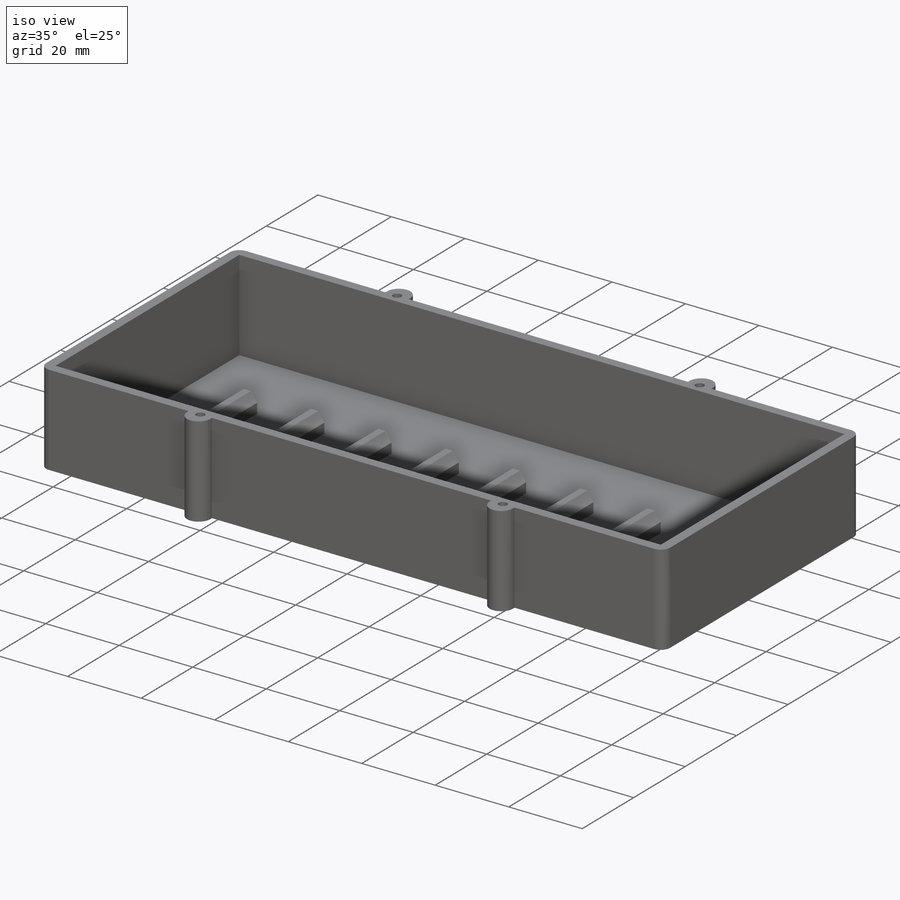
[diagram: iso view]
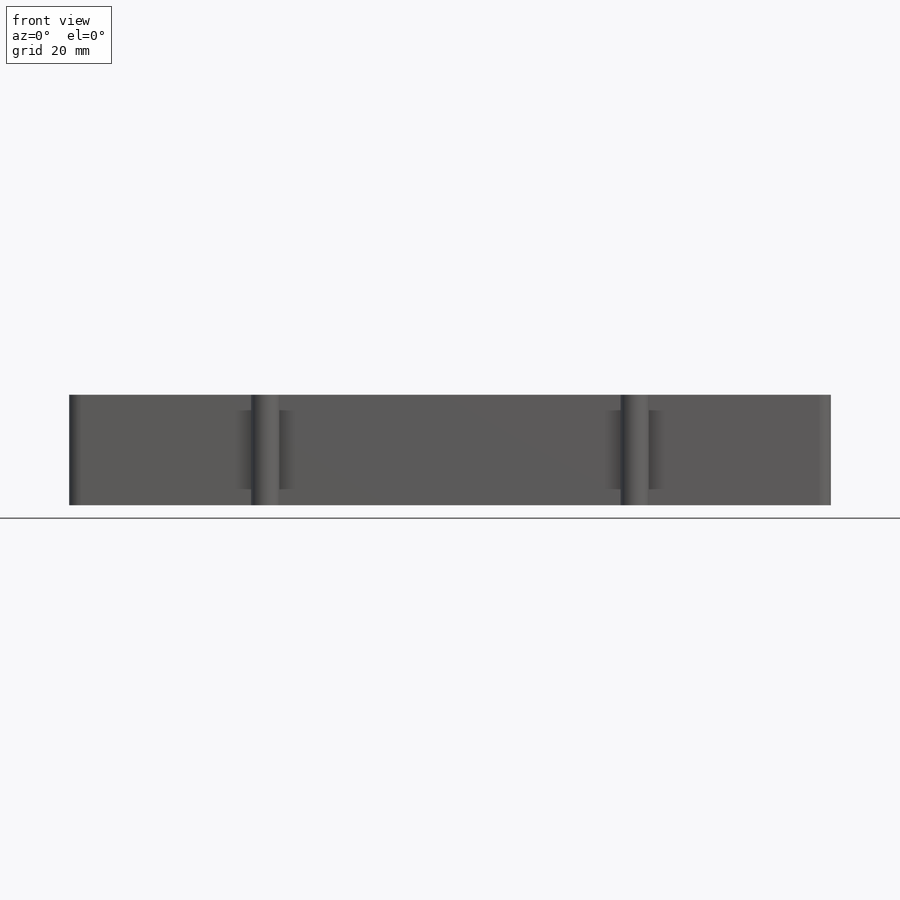
[diagram: front view]
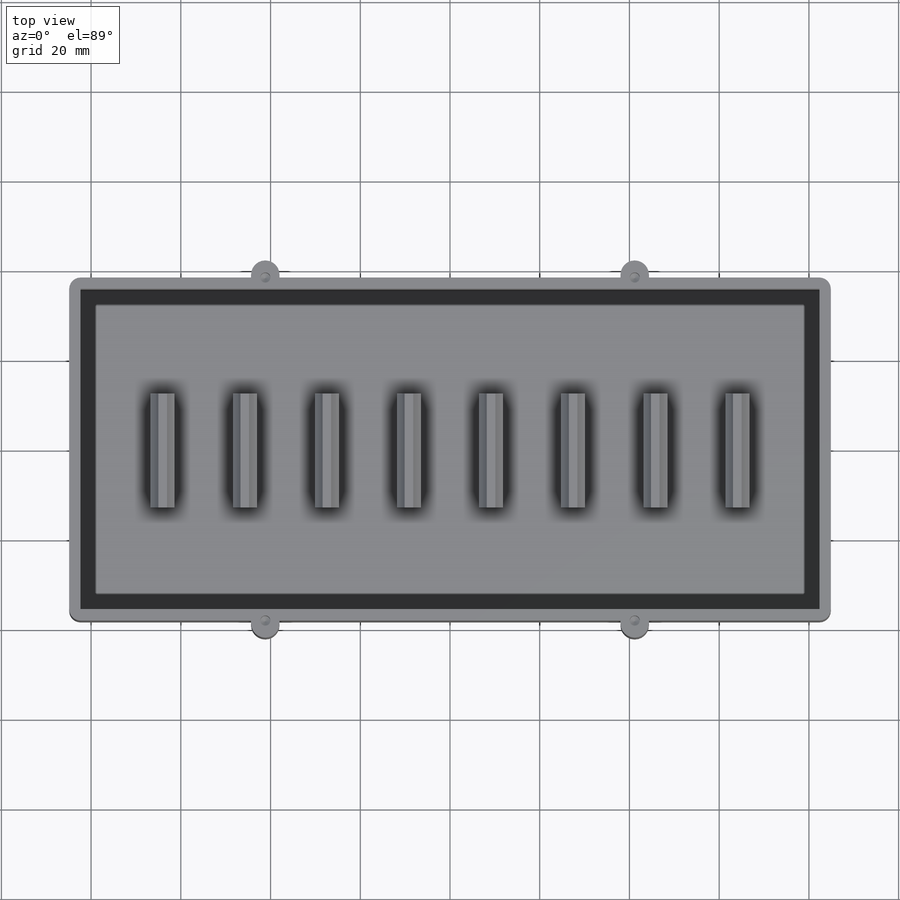
[diagram: top view]
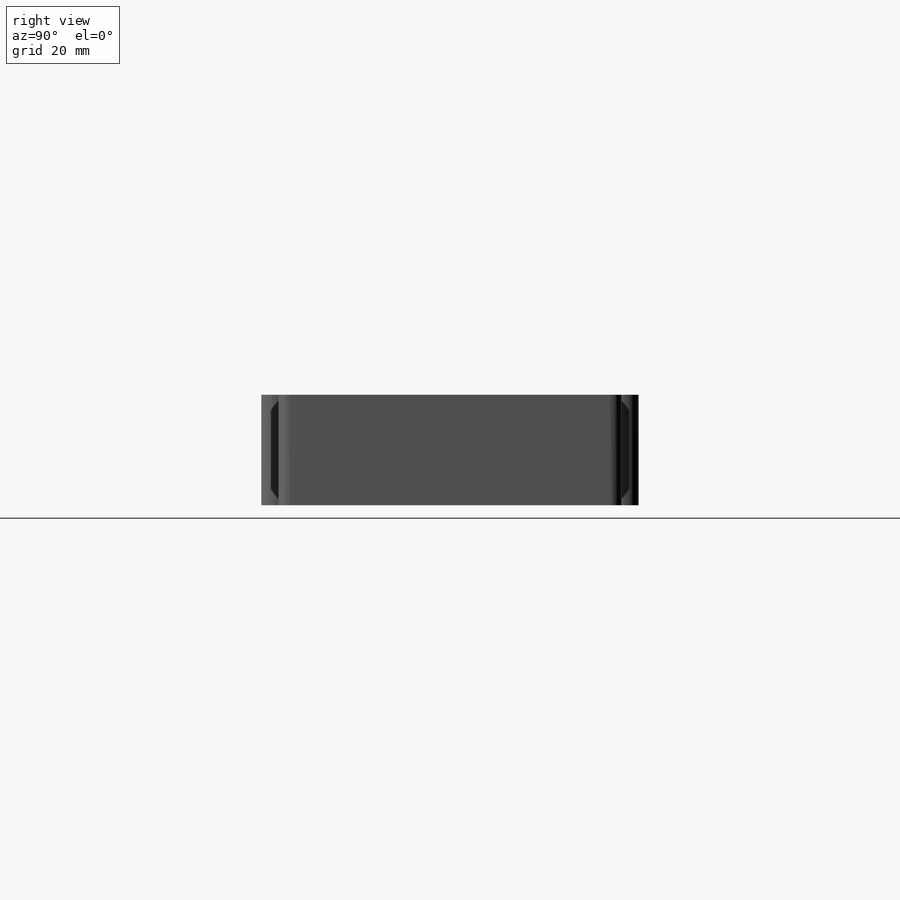
[diagram: right view]
SOLIDWORKS PART (.sldprt)
format: sldprt  version: not decoded by parser v0  size: 410,624 bytes
history: native  units: mm
features: sketch x8, fillet x5, thread x4, extrude x3, mirror x2, material x1, plane x1, pattern_linear x1, delete_body x1, hole x1 (+11 scaffold rows collapsed)
feature tree (38):
  scaffold x11  (default folders/planes/origin — collapsed)
  material  "ABS"
  sketch  "Sketch1"  dims[D1=164.7mm D2=71.4mm D3=2.54mm]
  extrude  "Boss-Extrude1"  [1 undecoded]
  sketch  "Sketch1<2>"  dims[D1=24.65mm]
  sketch  "Sketch5"
  plane  "Plane1"
  sketch  "Sketch4"  dims[D1=9.15mm D2=18.3mm D3=5.08mm]
  extrude  "Boss-Extrude2"  Depth=25.4mm
  pattern_linear  "LPattern2"  Count1=8 Count2=1 Spacing1=18.3mm Spacing2=50mm
  sketch  "Sketch6"  dims[D1=6.35mm D2=3.81mm]
  delete_body  "Body-Delete1"
  extrude  "Boss-Extrude3"  [1 undecoded]
  mirror  "Mirror1"
  mirror  "Mirror2"
  sketch  "Sketch10"
  hole  "#4-40 Tapped Hole1"  Diameter=2.2606mm Depth=7.62mm
  sketch  "Sketch8"
  sketch  "Sketch7"  dims[hole-wizard template sketch: 50 standard entries collapsed; hole parameters above]
  thread  "Hole Thread1"  Diameter=5.588mm  [1 undecoded]
  thread  "Hole Thread2"  Diameter=5.588mm  [1 undecoded]
  thread  "Hole Thread3"  Diameter=5.588mm  [1 undecoded]
  thread  "Hole Thread4"  Diameter=5.588mm  [1 undecoded]
  fillet  "Fillet1"  [1 undecoded]
  fillet  "Fillet2"  [1 undecoded]
  fillet  "Fillet3"  [1 undecoded]
  fillet  "Fillet4"  [1 undecoded]
  fillet  "Fillet5"  Radius=2.54mm
decode coverage: 13 of 25 modeling features carry decoded parameters
note: ~ marks probable driven/reference dimensions
note: 10 parameter values undecoded
summary: no parameter record found for 6 features
note: suppression state not decoded; provenance and decode notes live in map.json
